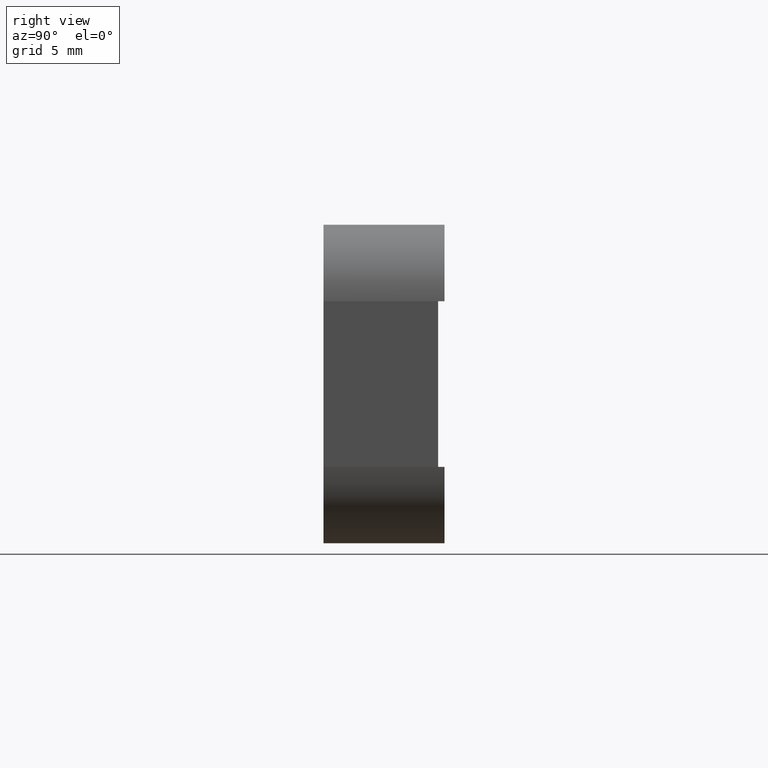
[diagram: clean part render]
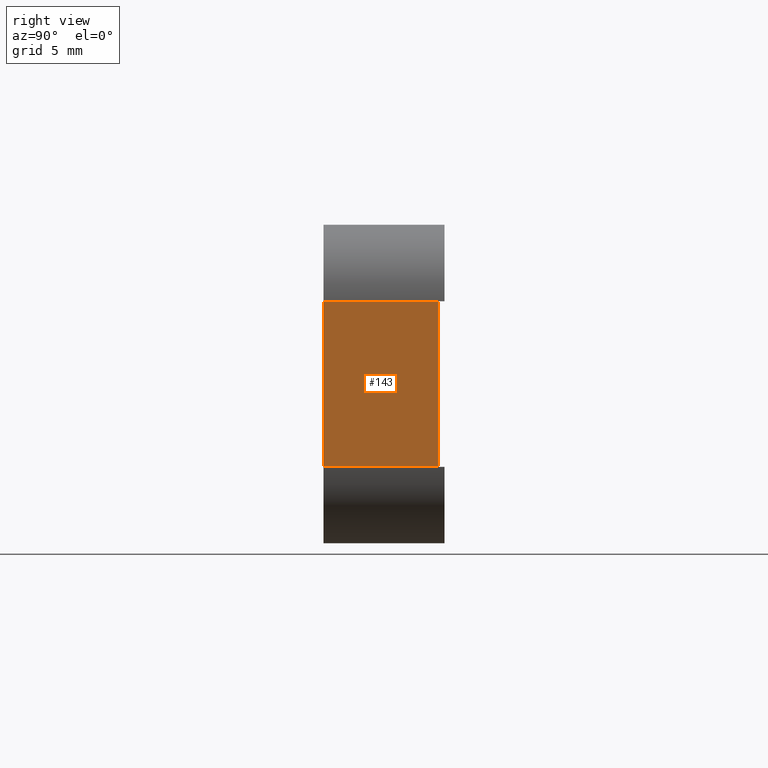
[diagram: same view with one face highlighted and labeled with its STEP entity id]
A machine part, right view. The second image highlights one B-rep face of the part: STEP entity #143.
In plain terms, the highlighted planar face has unit normal (-1, 0, 0).
Its self-contained STEP definition (entity closure, byte-faithful):
#5 = EDGE_CURVE ( 'NONE', #703, #691, #655, .T. ) ;
#26 = EDGE_CURVE ( 'NONE', #694, #702, #633, .T. ) ;
#47 = EDGE_CURVE ( 'NONE', #702, #703, #604, .T. ) ;
#69 = EDGE_CURVE ( 'NONE', #694, #691, #580, .T. ) ;
#90 = CARTESIAN_POINT ( 'NONE',  ( 50.79999999999999700, 9.500000000000000000, -6.000000000000003600 ) ) ;
#105 = CARTESIAN_POINT ( 'NONE',  ( 50.79999999999998300, 9.500000000000000000, -19.00000000000000700 ) ) ;
#108 = DIRECTION ( 'NONE',  ( -0.0000000000000000000, 1.000000000000000000, -0.0000000000000000000 ) ) ;
#131 = DIRECTION ( 'NONE',  ( 0.0000000000000000000, -1.000000000000000000, 0.0000000000000000000 ) ) ;
#143 = ADVANCED_FACE ( 'NONE', ( #551 ), #481, .F. ) ;
#169 = CARTESIAN_POINT ( 'NONE',  ( 50.79999999999999700, 9.000000000000000000, -19.00000000000000400 ) ) ;
#172 = CARTESIAN_POINT ( 'NONE',  ( 50.79999999999999700, 9.000000000000000000, -6.000000000000003600 ) ) ;
#179 = CARTESIAN_POINT ( 'NONE',  ( 50.79999999999999700, 0.0000000000000000000, -6.000000000000003600 ) ) ;
#180 = CARTESIAN_POINT ( 'NONE',  ( 50.79999999999998300, 0.0000000000000000000, -19.00000000000000700 ) ) ;
#328 = EDGE_LOOP ( 'NONE', ( #682, #681, #680, #679 ) ) ;
#357 = CARTESIAN_POINT ( 'NONE',  ( 50.79999999999999700, 9.000000000000000000, -19.00000000000000400 ) ) ;
#403 = DIRECTION ( 'NONE',  ( -0.0000000000000000000, -0.0000000000000000000, -1.000000000000000000 ) ) ;
#419 = CARTESIAN_POINT ( 'NONE',  ( 50.79999999999999700, 0.0000000000000000000, 0.0000000000000000000 ) ) ;
#437 = DIRECTION ( 'NONE',  ( -5.551115123125782700E-016, 0.0000000000000000000, -1.000000000000000000 ) ) ;
#447 = CARTESIAN_POINT ( 'NONE',  ( 50.79999999999999700, 9.500000000000000000, 0.0000000000000000000 ) ) ;
#480 = DIRECTION ( 'NONE',  ( 5.551115123125782700E-016, 0.0000000000000000000, 1.000000000000000000 ) ) ;
#481 = PLANE ( 'NONE',  #763 ) ;
#484 = DIRECTION ( 'NONE',  ( -1.000000000000000000, 0.0000000000000000000, 5.551115123125782700E-016 ) ) ;
#551 = FACE_OUTER_BOUND ( 'NONE', #328, .T. ) ;
#577 = VECTOR ( 'NONE', #403, 1000.000000000000000 ) ;
#580 = LINE ( 'NONE', #357, #577 ) ;
#601 = VECTOR ( 'NONE', #437, 1000.000000000000000 ) ;
#604 = LINE ( 'NONE', #419, #601 ) ;
#626 = VECTOR ( 'NONE', #131, 1000.000000000000000 ) ;
#633 = LINE ( 'NONE', #90, #626 ) ;
#654 = VECTOR ( 'NONE', #108, 1000.000000000000000 ) ;
#655 = LINE ( 'NONE', #105, #654 ) ;
#679 = ORIENTED_EDGE ( 'NONE', *, *, #5, .T. ) ;
#680 = ORIENTED_EDGE ( 'NONE', *, *, #47, .T. ) ;
#681 = ORIENTED_EDGE ( 'NONE', *, *, #26, .T. ) ;
#682 = ORIENTED_EDGE ( 'NONE', *, *, #69, .F. ) ;
#691 = VERTEX_POINT ( 'NONE', #169 ) ;
#694 = VERTEX_POINT ( 'NONE', #172 ) ;
#702 = VERTEX_POINT ( 'NONE', #179 ) ;
#703 = VERTEX_POINT ( 'NONE', #180 ) ;
#763 = AXIS2_PLACEMENT_3D ( 'NONE', #447, #484, #480 ) ;